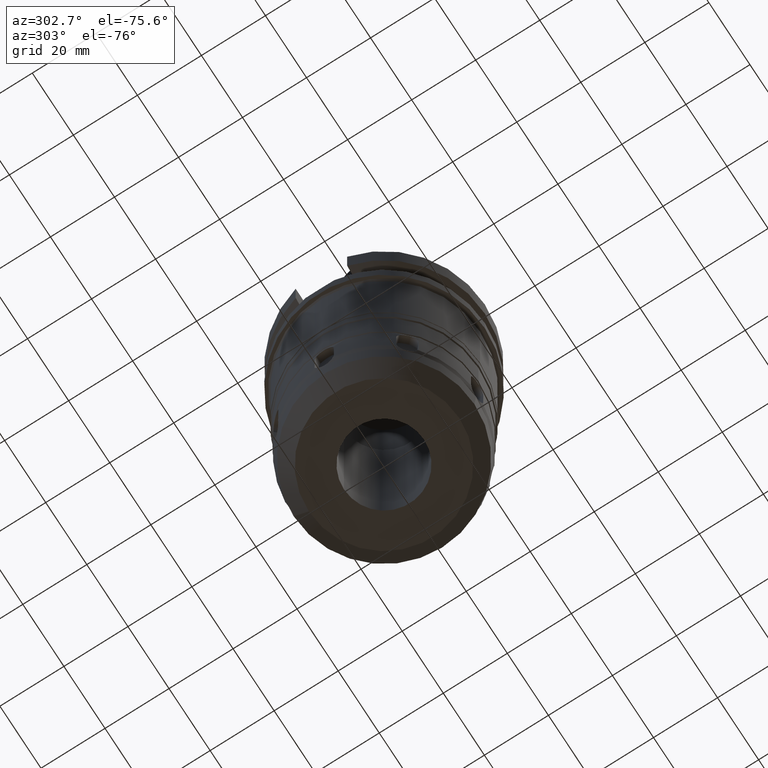
[diagram: clean part render]
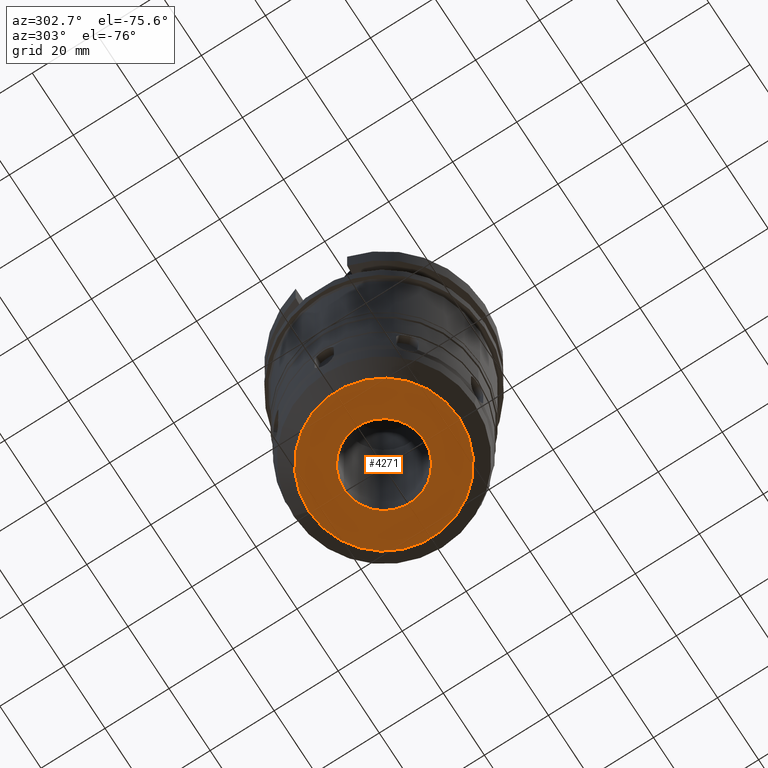
[diagram: same view with one face highlighted and labeled with its STEP entity id]
A machine part, auxiliary view. The second image highlights one B-rep face of the part: STEP entity #4271.
In plain terms, the highlighted planar face has unit normal (0, 0, -1).
Its self-contained STEP definition (entity closure, byte-faithful):
#2169=CARTESIAN_POINT('',(0.E0,0.E0,-1.05E2));
#2170=DIRECTION('',(0.E0,0.E0,1.E0));
#2171=DIRECTION('',(0.E0,-1.E0,0.E0));
#2172=AXIS2_PLACEMENT_3D('',#2169,#2170,#2171);
#2177=CARTESIAN_POINT('',(0.E0,0.E0,-1.05E2));
#2178=DIRECTION('',(0.E0,0.E0,1.E0));
#2179=DIRECTION('',(0.E0,1.E0,0.E0));
#2180=AXIS2_PLACEMENT_3D('',#2177,#2178,#2179);
#2185=CARTESIAN_POINT('',(0.E0,2.129905713077E-14,-1.05E2));
#2186=DIRECTION('',(0.E0,0.E0,-1.E0));
#2187=DIRECTION('',(0.E0,-1.E0,0.E0));
#2188=AXIS2_PLACEMENT_3D('',#2185,#2186,#2187);
#2193=CARTESIAN_POINT('',(0.E0,2.129905713077E-14,-1.05E2));
#2194=DIRECTION('',(0.E0,0.E0,-1.E0));
#2195=DIRECTION('',(0.E0,1.E0,0.E0));
#2196=AXIS2_PLACEMENT_3D('',#2193,#2194,#2195);
#2485=CARTESIAN_POINT('',(0.E0,1.25E1,-1.05E2));
#2486=VERTEX_POINT('',#2485);
#2487=CARTESIAN_POINT('',(0.E0,-1.25E1,-1.05E2));
#2488=VERTEX_POINT('',#2487);
#2489=CARTESIAN_POINT('',(0.E0,-2.35E1,-1.05E2));
#2490=CARTESIAN_POINT('',(0.E0,2.35E1,-1.05E2));
#2491=VERTEX_POINT('',#2489);
#2492=VERTEX_POINT('',#2490);
#4256=CARTESIAN_POINT('',(0.E0,0.E0,-1.05E2));
#4257=DIRECTION('',(0.E0,0.E0,-1.E0));
#4258=DIRECTION('',(0.E0,-1.E0,0.E0));
#4259=AXIS2_PLACEMENT_3D('',#4256,#4257,#4258);
#4260=PLANE('',#4259);
#4261=ORIENTED_EDGE('',*,*,#4249,.T.);
#4262=ORIENTED_EDGE('',*,*,#4238,.T.);
#4263=EDGE_LOOP('',(#4261,#4262));
#4264=FACE_OUTER_BOUND('',#4263,.F.);
#4266=ORIENTED_EDGE('',*,*,#4265,.T.);
#4268=ORIENTED_EDGE('',*,*,#4267,.T.);
#4269=EDGE_LOOP('',(#4266,#4268));
#4270=FACE_BOUND('',#4269,.F.);
#2173=CIRCLE('',#2172,2.35E1);
#2181=CIRCLE('',#2180,2.35E1);
#2189=CIRCLE('',#2188,1.25E1);
#2197=CIRCLE('',#2196,1.25E1);
#4238=EDGE_CURVE('',#2492,#2491,#2181,.T.);
#4249=EDGE_CURVE('',#2491,#2492,#2173,.T.);
#4265=EDGE_CURVE('',#2488,#2486,#2189,.T.);
#4267=EDGE_CURVE('',#2486,#2488,#2197,.T.);
#4271=ADVANCED_FACE('',(#4264,#4270),#4260,.T.);